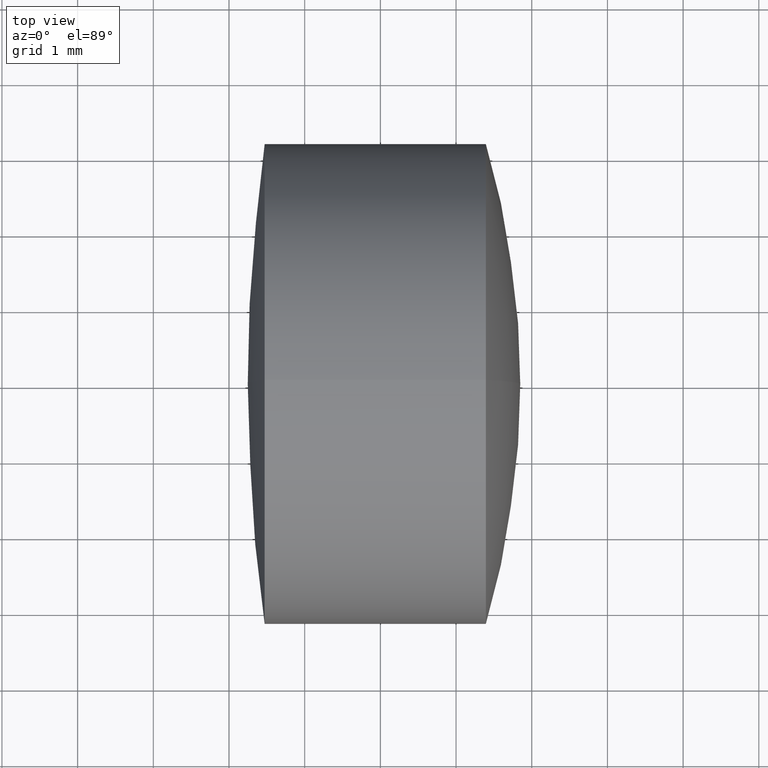
[diagram: clean part render]
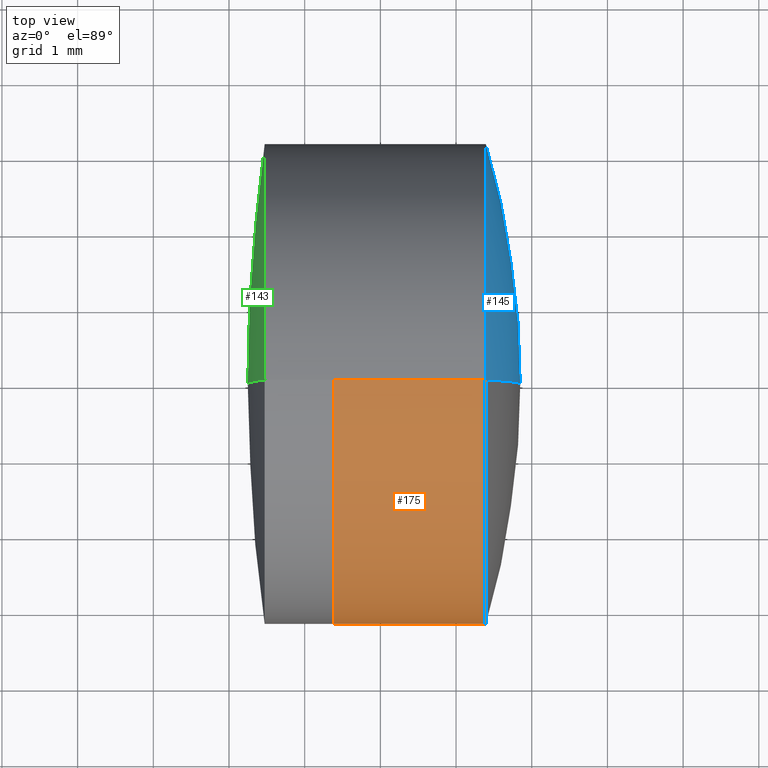
[diagram: same view with three faces highlighted in distinct colors, each labeled with its STEP entity id]
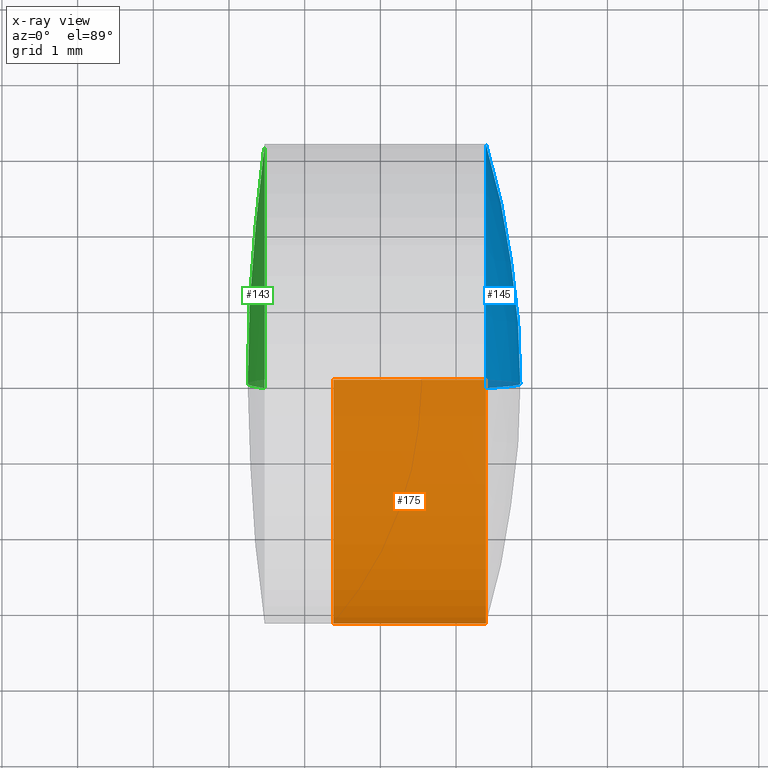
[diagram: x-ray of the same camera — body ghosted, the three highlighted faces saturated]
A machine part, top view with three faces highlighted in distinct colors.
The next image is the same camera in x-ray (body ghosted, the three faces saturated) — at least one of them is partly hidden behind the body in this view.
Their STEP definitions:

[orange] entity #175 — the highlighted cylindrical surface (partial cylindrical patch) has radius 3.175 mm, axis along (-1, -0, -0).
#14 = EDGE_LOOP ( 'NONE', ( #35, #269, #340, #54 ) ) ;
#21 = DIRECTION ( 'NONE',  ( -1.000000000000000000, -0.0000000000000000000, -0.0000000000000000000 ) ) ;
#34 = LINE ( 'NONE', #207, #284 ) ;
#35 = ORIENTED_EDGE ( 'NONE', *, *, #48, .F. ) ;
#48 = EDGE_CURVE ( 'NONE', #115, #212, #34, .T. ) ;
#54 = ORIENTED_EDGE ( 'NONE', *, *, #208, .F. ) ;
#70 = CARTESIAN_POINT ( 'NONE',  ( -0.5519199926577972300, 0.0000000000000000000, 3.174999999999998000 ) ) ;
#84 = CYLINDRICAL_SURFACE ( 'NONE', #307, 3.174999999999998000 ) ;
#86 = EDGE_CURVE ( 'NONE', #115, #101, #104, .T. ) ;
#101 = VERTEX_POINT ( 'NONE', #270 ) ;
#104 = CIRCLE ( 'NONE', #151, 3.174999999999998000 ) ;
#115 = VERTEX_POINT ( 'NONE', #189 ) ;
#123 = VERTEX_POINT ( 'NONE', #303 ) ;
#136 = DIRECTION ( 'NONE',  ( 0.0000000000000000000, 0.0000000000000000000, 1.000000000000000000 ) ) ;
#148 = DIRECTION ( 'NONE',  ( -1.000000000000000000, -0.0000000000000000000, -0.0000000000000000000 ) ) ;
#151 = AXIS2_PLACEMENT_3D ( 'NONE', #277, #202, #190 ) ;
#155 = CARTESIAN_POINT ( 'NONE',  ( 2.377028588039098900, 0.0000000000000000000, -3.174999999999998500 ) ) ;
#172 = CIRCLE ( 'NONE', #187, 3.174999999999998500 ) ;
#175 = ADVANCED_FACE ( 'NONE', ( #216 ), #84, .T. ) ;
#178 = DIRECTION ( 'NONE',  ( 0.0000000000000000000, 0.0000000000000000000, 1.000000000000000000 ) ) ;
#187 = AXIS2_PLACEMENT_3D ( 'NONE', #289, #242, #178 ) ;
#189 = CARTESIAN_POINT ( 'NONE',  ( 4.393583028086461600, 0.0000000000000000000, -3.175000000000001600 ) ) ;
#190 = DIRECTION ( 'NONE',  ( 0.0000000000000000000, 0.0000000000000000000, 1.000000000000000000 ) ) ;
#202 = DIRECTION ( 'NONE',  ( -1.000000000000000000, -0.0000000000000000000, -0.0000000000000000000 ) ) ;
#207 = CARTESIAN_POINT ( 'NONE',  ( -0.5519199926577972300, 3.888253587292844600E-016, -3.174999999999998000 ) ) ;
#208 = EDGE_CURVE ( 'NONE', #212, #123, #172, .T. ) ;
#212 = VERTEX_POINT ( 'NONE', #155 ) ;
#216 = FACE_OUTER_BOUND ( 'NONE', #14, .T. ) ;
#224 = LINE ( 'NONE', #70, #347 ) ;
#234 = EDGE_CURVE ( 'NONE', #101, #123, #224, .T. ) ;
#237 = CARTESIAN_POINT ( 'NONE',  ( -0.5519199926577972300, 0.0000000000000000000, 0.0000000000000000000 ) ) ;
#242 = DIRECTION ( 'NONE',  ( -1.000000000000000000, -0.0000000000000000000, -0.0000000000000000000 ) ) ;
#269 = ORIENTED_EDGE ( 'NONE', *, *, #86, .T. ) ;
#270 = CARTESIAN_POINT ( 'NONE',  ( 4.393583028086461600, -3.888253587292848500E-016, 3.175000000000001600 ) ) ;
#277 = CARTESIAN_POINT ( 'NONE',  ( 4.393583028086461600, 0.0000000000000000000, 0.0000000000000000000 ) ) ;
#284 = VECTOR ( 'NONE', #148, 1000.000000000000000 ) ;
#289 = CARTESIAN_POINT ( 'NONE',  ( 2.377028588039098900, 0.0000000000000000000, 0.0000000000000000000 ) ) ;
#303 = CARTESIAN_POINT ( 'NONE',  ( 2.377028588039098900, -3.888253587292845100E-016, 3.174999999999998500 ) ) ;
#307 = AXIS2_PLACEMENT_3D ( 'NONE', #237, #21, #136 ) ;
#332 = DIRECTION ( 'NONE',  ( -1.000000000000000000, -0.0000000000000000000, -0.0000000000000000000 ) ) ;
#340 = ORIENTED_EDGE ( 'NONE', *, *, #234, .T. ) ;
#347 = VECTOR ( 'NONE', #332, 1000.000000000000000 ) ;

[blue] entity #145 — the highlighted spherical surface has radius 11.32 mm.
#7 = EDGE_CURVE ( 'NONE', #101, #115, #194, .T. ) ;
#9 = FACE_OUTER_BOUND ( 'NONE', #245, .T. ) ;
#13 = EDGE_CURVE ( 'NONE', #185, #115, #188, .T. ) ;
#22 = AXIS2_PLACEMENT_3D ( 'NONE', #339, #55, #135 ) ;
#29 = ORIENTED_EDGE ( 'NONE', *, *, #13, .T. ) ;
#55 = DIRECTION ( 'NONE',  ( -0.0000000000000000000, -1.000000000000000000, -0.0000000000000000000 ) ) ;
#60 = DIRECTION ( 'NONE',  ( 0.0000000000000000000, -1.000000000000000000, -1.224646799147353200E-016 ) ) ;
#83 = DIRECTION ( 'NONE',  ( 0.0000000000000000000, 1.224646799147353200E-016, -1.000000000000000000 ) ) ;
#89 = DIRECTION ( 'NONE',  ( -1.000000000000000000, -0.0000000000000000000, -0.0000000000000000000 ) ) ;
#101 = VERTEX_POINT ( 'NONE', #270 ) ;
#111 = DIRECTION ( 'NONE',  ( 0.0000000000000000000, 0.0000000000000000000, 1.000000000000000000 ) ) ;
#115 = VERTEX_POINT ( 'NONE', #189 ) ;
#135 = DIRECTION ( 'NONE',  ( 0.0000000000000000000, 0.0000000000000000000, -1.000000000000000000 ) ) ;
#145 = ADVANCED_FACE ( 'NONE', ( #9 ), #294, .T. ) ;
#165 = ORIENTED_EDGE ( 'NONE', *, *, #7, .F. ) ;
#171 = AXIS2_PLACEMENT_3D ( 'NONE', #176, #89, #327 ) ;
#176 = CARTESIAN_POINT ( 'NONE',  ( 4.393583028086461600, 0.0000000000000000000, 0.0000000000000000000 ) ) ;
#177 = ORIENTED_EDGE ( 'NONE', *, *, #297, .F. ) ;
#181 = CARTESIAN_POINT ( 'NONE',  ( -6.472040515916891200, 0.0000000000000000000, 0.0000000000000000000 ) ) ;
#185 = VERTEX_POINT ( 'NONE', #215 ) ;
#188 = CIRCLE ( 'NONE', #261, 11.32000000000000000 ) ;
#189 = CARTESIAN_POINT ( 'NONE',  ( 4.393583028086461600, 0.0000000000000000000, -3.175000000000001600 ) ) ;
#194 = CIRCLE ( 'NONE', #171, 3.174999999999998000 ) ;
#215 = CARTESIAN_POINT ( 'NONE',  ( 4.847959484083109100, 0.0000000000000000000, -6.931500883174019100E-016 ) ) ;
#245 = EDGE_LOOP ( 'NONE', ( #177, #29, #165 ) ) ;
#261 = AXIS2_PLACEMENT_3D ( 'NONE', #181, #342, #111 ) ;
#265 = CARTESIAN_POINT ( 'NONE',  ( -6.472040515916891200, 0.0000000000000000000, 0.0000000000000000000 ) ) ;
#270 = CARTESIAN_POINT ( 'NONE',  ( 4.393583028086461600, -3.888253587292848500E-016, 3.175000000000001600 ) ) ;
#294 = SPHERICAL_SURFACE ( 'NONE', #22, 11.32000000000000000 ) ;
#297 = EDGE_CURVE ( 'NONE', #185, #101, #336, .T. ) ;
#300 = AXIS2_PLACEMENT_3D ( 'NONE', #265, #60, #83 ) ;
#327 = DIRECTION ( 'NONE',  ( 0.0000000000000000000, 0.0000000000000000000, 1.000000000000000000 ) ) ;
#336 = CIRCLE ( 'NONE', #300, 11.32000000000000000 ) ;
#339 = CARTESIAN_POINT ( 'NONE',  ( -6.472040515916891200, 0.0000000000000000000, 0.0000000000000000000 ) ) ;
#342 = DIRECTION ( 'NONE',  ( 0.0000000000000000000, 1.000000000000000000, -0.0000000000000000000 ) ) ;

[green] entity #143 — the highlighted spherical surface has radius 22.7 mm.
#8 = DIRECTION ( 'NONE',  ( -0.0000000000000000000, 1.000000000000000000, 1.224646799147353200E-016 ) ) ;
#12 = EDGE_CURVE ( 'NONE', #299, #139, #310, .T. ) ;
#19 = AXIS2_PLACEMENT_3D ( 'NONE', #120, #59, #186 ) ;
#59 = DIRECTION ( 'NONE',  ( -1.000000000000000000, -0.0000000000000000000, -0.0000000000000000000 ) ) ;
#64 = CARTESIAN_POINT ( 'NONE',  ( 1.471096379993142000, 0.0000000000000000000, 3.174999999999998500 ) ) ;
#66 = EDGE_CURVE ( 'NONE', #167, #299, #144, .T. ) ;
#67 = AXIS2_PLACEMENT_3D ( 'NONE', #126, #271, #129 ) ;
#68 = CARTESIAN_POINT ( 'NONE',  ( 1.471096379993142000, 3.888253587292844600E-016, -3.174999999999998500 ) ) ;
#74 = CIRCLE ( 'NONE', #291, 22.70000000000001700 ) ;
#90 = EDGE_LOOP ( 'NONE', ( #221, #306, #124 ) ) ;
#98 = DIRECTION ( 'NONE',  ( 0.0000000000000000000, 0.0000000000000000000, -1.000000000000000000 ) ) ;
#117 = CARTESIAN_POINT ( 'NONE',  ( 23.94795948408310700, 0.0000000000000000000, -4.028288892016745600E-017 ) ) ;
#120 = CARTESIAN_POINT ( 'NONE',  ( 1.471096379993141400, 0.0000000000000000000, 0.0000000000000000000 ) ) ;
#124 = ORIENTED_EDGE ( 'NONE', *, *, #209, .F. ) ;
#126 = CARTESIAN_POINT ( 'NONE',  ( 23.94795948408310700, 0.0000000000000000000, -4.028288892016745600E-017 ) ) ;
#129 = DIRECTION ( 'NONE',  ( 0.0000000000000000000, 0.0000000000000000000, 1.000000000000000000 ) ) ;
#139 = VERTEX_POINT ( 'NONE', #287 ) ;
#143 = ADVANCED_FACE ( 'NONE', ( #211 ), #255, .T. ) ;
#144 = CIRCLE ( 'NONE', #19, 3.174999999999999800 ) ;
#150 = DIRECTION ( 'NONE',  ( 0.0000000000000000000, -1.000000000000000000, 0.0000000000000000000 ) ) ;
#152 = CARTESIAN_POINT ( 'NONE',  ( 23.94795948408310700, 0.0000000000000000000, -4.028288892016745600E-017 ) ) ;
#167 = VERTEX_POINT ( 'NONE', #64 ) ;
#186 = DIRECTION ( 'NONE',  ( 0.0000000000000000000, 0.0000000000000000000, 1.000000000000000000 ) ) ;
#209 = EDGE_CURVE ( 'NONE', #167, #139, #74, .T. ) ;
#211 = FACE_OUTER_BOUND ( 'NONE', #90, .T. ) ;
#221 = ORIENTED_EDGE ( 'NONE', *, *, #66, .T. ) ;
#225 = DIRECTION ( 'NONE',  ( 0.0000000000000000000, -1.224646799147353200E-016, 1.000000000000000000 ) ) ;
#240 = AXIS2_PLACEMENT_3D ( 'NONE', #117, #8, #225 ) ;
#255 = SPHERICAL_SURFACE ( 'NONE', #67, 22.70000000000001700 ) ;
#271 = DIRECTION ( 'NONE',  ( 0.0000000000000000000, 1.000000000000000000, 0.0000000000000000000 ) ) ;
#287 = CARTESIAN_POINT ( 'NONE',  ( 1.247959484083089400, 0.0000000000000000000, 1.349691228112079600E-015 ) ) ;
#291 = AXIS2_PLACEMENT_3D ( 'NONE', #152, #150, #98 ) ;
#299 = VERTEX_POINT ( 'NONE', #68 ) ;
#306 = ORIENTED_EDGE ( 'NONE', *, *, #12, .T. ) ;
#310 = CIRCLE ( 'NONE', #240, 22.70000000000001700 ) ;